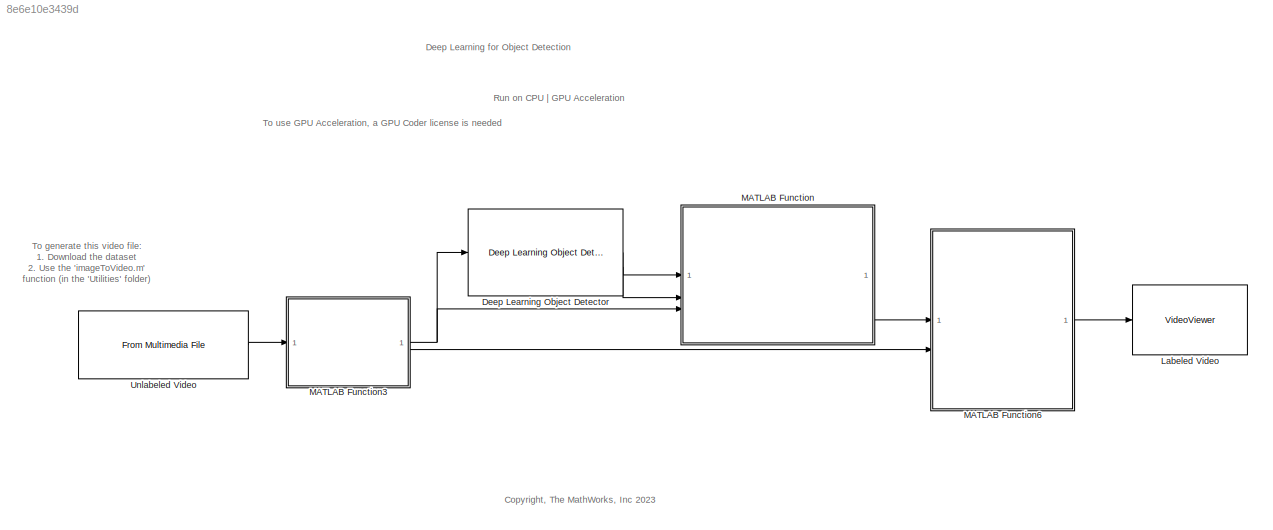
MODEL slx_8e6e10e3439d
KIND model
CONFIG AbsTol = auto
CONFIG EnableMultiTasking = off
CONFIG FixedStep = auto
CONFIG MaxStep = auto
CONFIG MinStep = auto
CONFIG RelTol = 1e-3
CONFIG SampleTimeConstraint = Unconstrained
CONFIG SolverName = VariableStepAuto
CONFIG StartTime = 0.0
CONFIG StopTime = 10.0
BLOCK [Reference] Deep Learning Object Detector  REF=visionanalysis/Deep Learning Object Detector
  SourceBlock = visionanalysis/Deep Learning Object Detector
  SourceType = Deep Learning Object Detector
BLOCK [VideoViewer] Labeled Video
  FigPos = [502.333333333333 621.333333333333 440 360]
  ScopeSpecificationString = vipscopes.VideoViewerScopeCfg('CurrentConfiguration', extmgr.ConfigurationSet(extmgr.Configuration('Core','General UI',true),extmgr.Configuration('Core','Source UI',true),extmgr.Configuration('Sources','WiredSimulink',true),extmgr.Configuration('Visuals','Video',true),extmgr.Configuration('Tools','Image Navigation Tools',true),extmgr.Configuration('Tools','Image Tool',true),extmgr.Configuration('T...<+101ch>
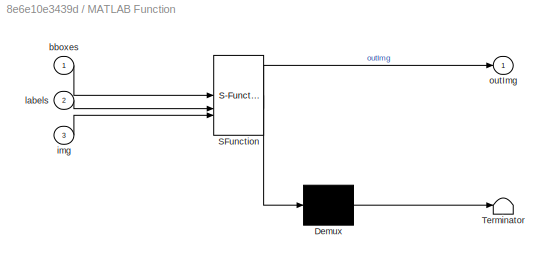
BLOCK [SubSystem] MATLAB Function
  ErrorFcn = Stateflow.Translate.translate
  LibrarySourceBlock = simulink/User-Defined\nFunctions/MATLAB Function
  PermitHierarchicalResolution = ExplicitOnly
  SFBlockType = MATLAB Function
  TreatAsAtomicUnit = on
BLOCK [Demux] MATLAB Function/ Demux 
  Outputs = 1
BLOCK [S-Function] MATLAB Function/ SFunction 
  EnableBusSupport = on
  FunctionName = sf_sfun
  PortCounts = [3 2]
  SFcnIsStateOwnerBlock = off
  SFunctionDeploymentMode = off
  Tag = Stateflow S-Function 5
BLOCK [Terminator] MATLAB Function/ Terminator 
BLOCK [Inport] MATLAB Function/bboxes
BLOCK [Inport] MATLAB Function/img
  Port = 3
BLOCK [Inport] MATLAB Function/labels
  Port = 2
BLOCK [Outport] MATLAB Function/outImg
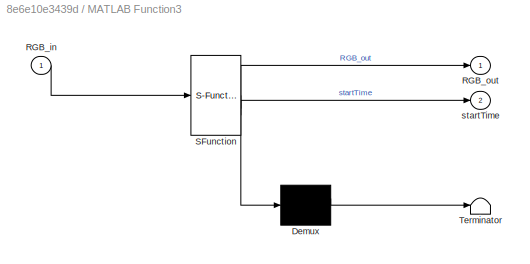
BLOCK [SubSystem] MATLAB Function3
  ErrorFcn = Stateflow.Translate.translate
  PermitHierarchicalResolution = ExplicitOnly
  SFBlockType = MATLAB Function
  TreatAsAtomicUnit = on
BLOCK [Demux] MATLAB Function3/ Demux 
  Outputs = 1
BLOCK [S-Function] MATLAB Function3/ SFunction 
  EnableBusSupport = on
  FunctionName = sf_sfun
  PortCounts = [1 3]
  SFcnIsStateOwnerBlock = off
  SFunctionDeploymentMode = off
  Tag = Stateflow S-Function 6
BLOCK [Terminator] MATLAB Function3/ Terminator 
BLOCK [Inport] MATLAB Function3/RGB_in
BLOCK [Outport] MATLAB Function3/RGB_out
BLOCK [Outport] MATLAB Function3/startTime
  Port = 2
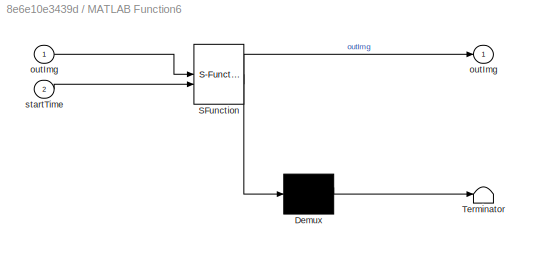
BLOCK [SubSystem] MATLAB Function6
  ErrorFcn = Stateflow.Translate.translate
  PermitHierarchicalResolution = ExplicitOnly
  SFBlockType = MATLAB Function
  TreatAsAtomicUnit = on
BLOCK [Demux] MATLAB Function6/ Demux 
  Outputs = 1
BLOCK [S-Function] MATLAB Function6/ SFunction 
  EnableBusSupport = on
  FunctionName = sf_sfun
  PortCounts = [2 2]
  SFcnIsStateOwnerBlock = off
  SFunctionDeploymentMode = off
  Tag = Stateflow S-Function 7
BLOCK [Terminator] MATLAB Function6/ Terminator 
BLOCK [Outport] MATLAB Function6/outImg
BLOCK [Inport] MATLAB Function6/outImg 
BLOCK [Inport] MATLAB Function6/startTime
  Port = 2
BLOCK [Reference] Unlabeled Video  REF=dspvision/From Multimedia File
  SourceBlock = dspvision/From Multimedia File
  SourceType = From Multimedia File
ANNOTATION (root): To use GPU Acceleration, a GPU Coder license is needed
ANNOTATION (root): Run on CPU | GPU Acceleration
ANNOTATION (root): <copyright redacted>
ANNOTATION (root): To generate this video file: 1. Download the dataset 2. Use the 'imageToVideo.m' function (in the 'Utilities' folder)
ANNOTATION (root): Deep Learning for Object Detection
LINE Deep Learning Object Detector:1 -> MATLAB Function:1
LINE Deep Learning Object Detector:2 -> MATLAB Function:2
NET MATLAB Function3:1 -> Deep Learning Object Detector:1, MATLAB Function:3
LINE MATLAB Function3:2 -> MATLAB Function6:2
LINE MATLAB Function6:1 -> Labeled Video:1
LINE MATLAB Function:1 -> MATLAB Function6:1
LINE Unlabeled Video:1 -> MATLAB Function3:1
note: NET lines group one-source signal fan-out (src -> all destinations, sorted); 1:1 wires keep LINE
CHART MATLAB Function states=1 transitions=1
  STATE_LABEL 'eML_blk_kernel()'
  STATE_LABEL 'SCRIPT:\nfunction outImg = AnnotateImage(bboxes, labels, img)\n    % Annotate detections in the image. \n\n    if ~isempty(bboxes)\n        for i = 1:numel(labels)\n            img = insertObjectAnnotation(img, "rectangle", bboxes(i, :), char(labels(i)));\n        end\n    end\n\n    outImg = img;\n\nend'
CHART MATLAB Function3 states=1 transitions=1
  STATE_LABEL 'eML_blk_kernel()'
  STATE_LABEL 'SCRIPT:\nfunction [RGB_out, startTime] = resizeImg(RGB_in)\n    RGB_out = imresize(RGB_in,[416,416]);\n    \n    currentTime = datetime;\n    startTime = [currentTime.Year currentTime.Month currentTime.Day currentTime.Hour ...\n        currentTime.Minute currentTime.Second];\nend'
CHART MATLAB Function6 states=1 transitions=1
  STATE_LABEL 'eML_blk_kernel()'
  STATE_LABEL "SCRIPT:\nfunction outImg  = calcFPS(outImg, startTime)\n    finishTime = datetime;\n    \n    diffTime = seconds(finishTime-datetime(startTime));\n    persistent count;\n    if isempty(count)\n        count = 0;\n    end\n    persistent fps;\n    if isempty(fps)\n        fps = 0;\n    end\n    fps = (count*fps + 1*(1/diffTime))/(count+1);\n    \n    count = count + 1;\n    outImg = insertText(outImg, [10 80],['FP...<+62ch>"
CHART  states=0 transitions=0
CHART  states=0 transitions=0
CHART  states=0 transitions=0
